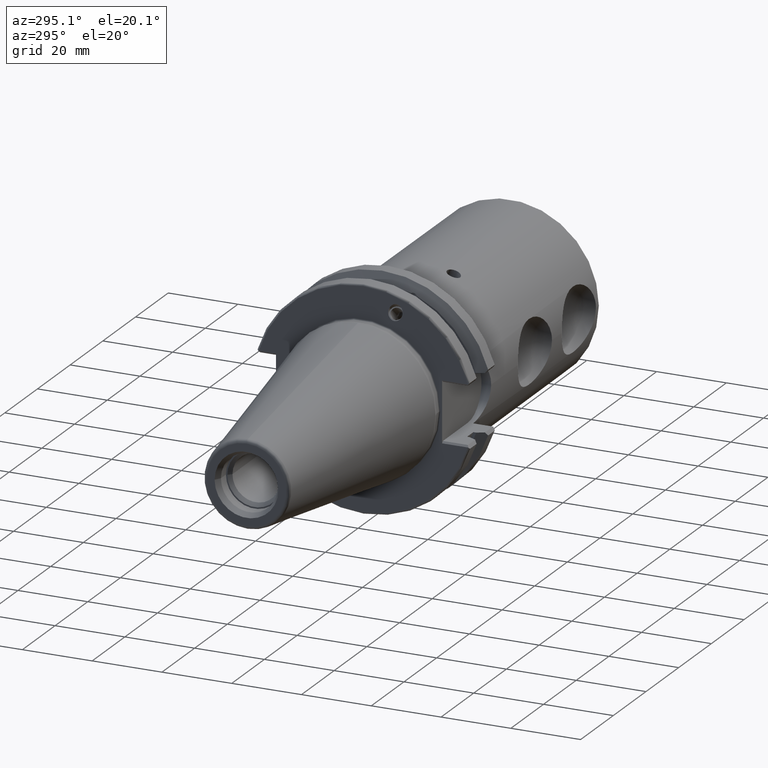
[diagram: clean part render]
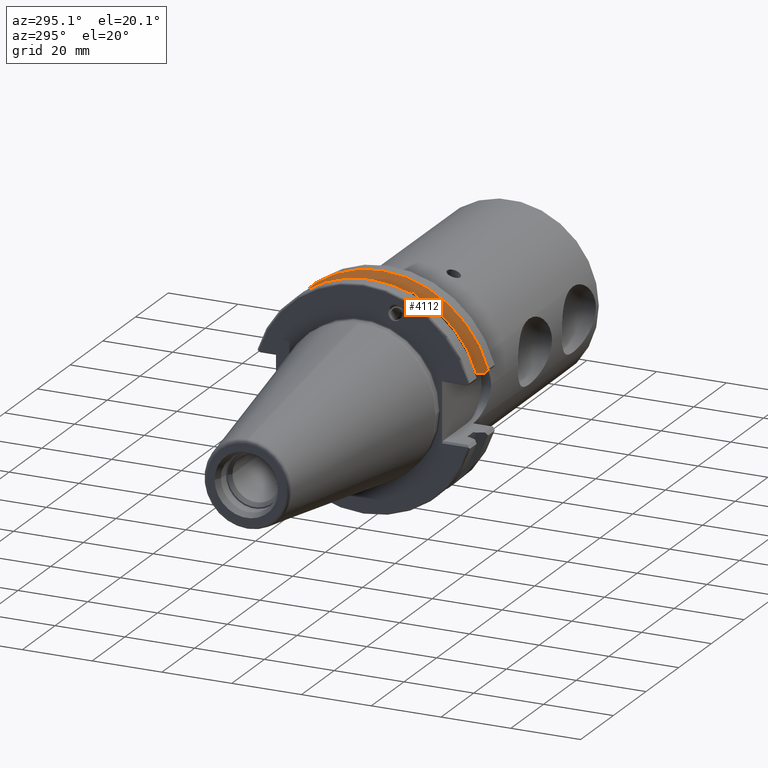
[diagram: same view with one face highlighted and labeled with its STEP entity id]
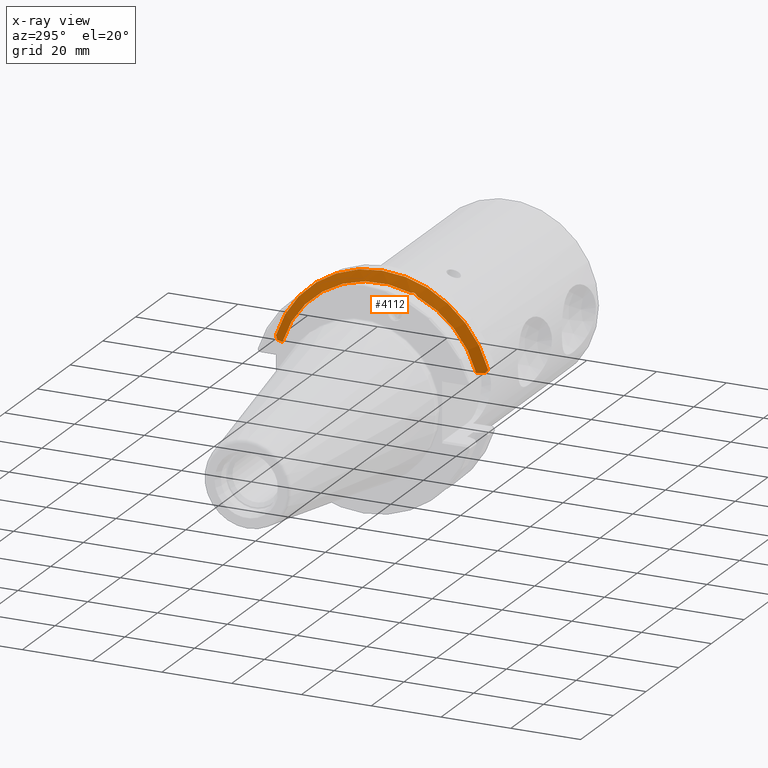
[diagram: x-ray of the same camera — body ghosted, the highlighted face saturated]
A machine part, auxiliary view. The second image highlights one B-rep face of the part: STEP entity #4112.
The next image is the same camera in x-ray: the body ghosted, the highlighted face saturated — about 0% of this face is hidden behind the body in this view.
In plain terms, the highlighted conical surface has half-angle 60 deg.
Its self-contained STEP definition (entity closure, byte-faithful):
#1535=CARTESIAN_POINT('',(1.30464E1,-9.084793785368E0,2.749759693203E1));
#1536=CARTESIAN_POINT('',(1.308149826966E1,-9.179065544022E0,2.753047488320E1));
#1537=CARTESIAN_POINT('',(1.314162715553E1,-9.364207123534E0,2.757829755791E1));
#1538=CARTESIAN_POINT('',(1.320167832453E1,-9.625750633389E0,2.759828699729E1));
#1539=CARTESIAN_POINT('',(1.323327921177E1,-9.873137095184E0,2.756889805318E1));
#1540=CARTESIAN_POINT('',(1.323651888319E1,-1.009660918253E1,2.749378037514E1));
#1541=CARTESIAN_POINT('',(1.321576158414E1,-1.028937524975E1,2.738377555270E1));
#1542=CARTESIAN_POINT('',(1.317511990892E1,-1.045713078144E1,2.724474050070E1));
#1543=CARTESIAN_POINT('',(1.311716536738E1,-1.060145930589E1,2.708109596618E1));
#1544=CARTESIAN_POINT('',(1.307107762697E1,-1.067984243025E1,2.696428810224E1));
#1545=CARTESIAN_POINT('',(1.30464E1,-1.071575880790E1,2.690397421070E1));
#1547=CARTESIAN_POINT('',(1.30464E1,0.E0,0.E0));
#1548=DIRECTION('',(-1.E0,0.E0,0.E0));
#1549=DIRECTION('',(0.E0,-3.137071069069E-1,9.495198002549E-1));
#1550=AXIS2_PLACEMENT_3D('',#1547,#1548,#1549);
#1552=CARTESIAN_POINT('',(1.414186097953E1,2.975013277281E1,8.19E0));
#1553=CARTESIAN_POINT('',(1.401756242049E1,2.952683227014E1,8.19E0));
#1554=CARTESIAN_POINT('',(1.377068175947E1,2.908296065829E1,8.19E0));
#1555=CARTESIAN_POINT('',(1.340552806305E1,2.842534536140E1,8.19E0));
#1556=CARTESIAN_POINT('',(1.316553367620E1,2.799237066391E1,8.19E0));
#1557=CARTESIAN_POINT('',(1.30464E1,2.777724275660E1,8.19E0));
#1559=CARTESIAN_POINT('',(1.465750913500E1,3.042082819764E1,9.090418679549E0));
#1560=CARTESIAN_POINT('',(1.457020733935E1,3.030819545703E1,8.939207533895E0));
#1561=CARTESIAN_POINT('',(1.439695642451E1,3.008378230097E1,8.637929501904E0));
#1562=CARTESIAN_POINT('',(1.422643406289E1,2.986106732427E1,8.338931301213E0));
#1563=CARTESIAN_POINT('',(1.414186097953E1,2.975013277281E1,8.19E0));
#1565=CARTESIAN_POINT('',(1.465750913500E1,0.E0,0.E0));
#1566=DIRECTION('',(1.E0,0.E0,0.E0));
#1567=DIRECTION('',(0.E0,9.581363211856E-1,2.863123993559E-1));
#1568=AXIS2_PLACEMENT_3D('',#1565,#1566,#1567);
#1570=CARTESIAN_POINT('',(1.414186097953E1,-2.975013277281E1,8.19E0));
#1571=CARTESIAN_POINT('',(1.422588999059E1,-2.986035366440E1,8.337973202119E0));
#1572=CARTESIAN_POINT('',(1.439586057419E1,-3.008235706926E1,8.636016106927E0));
#1573=CARTESIAN_POINT('',(1.456965577366E1,-3.030748385248E1,8.938252194093E0));
#1574=CARTESIAN_POINT('',(1.465750913500E1,-3.042082819764E1,9.090418679549E0));
#1576=CARTESIAN_POINT('',(1.30464E1,-2.777724275660E1,8.19E0));
#1577=CARTESIAN_POINT('',(1.316549556382E1,-2.799230184175E1,8.19E0));
#1578=CARTESIAN_POINT('',(1.340543902025E1,-2.842518482368E1,8.19E0));
#1579=CARTESIAN_POINT('',(1.377059199373E1,-2.908279917371E1,8.19E0));
#1580=CARTESIAN_POINT('',(1.401752390619E1,-2.952676307978E1,8.19E0));
#1581=CARTESIAN_POINT('',(1.414186097953E1,-2.975013277281E1,8.19E0));
#1583=CARTESIAN_POINT('',(1.30464E1,0.E0,0.E0));
#1584=DIRECTION('',(-1.E0,0.E0,0.E0));
#1585=DIRECTION('',(0.E0,-9.591762530767E-1,2.828089735736E-1));
#1586=AXIS2_PLACEMENT_3D('',#1583,#1584,#1585);
#2342=CARTESIAN_POINT('',(1.30464E1,2.777724275660E1,8.19E0));
#2343=VERTEX_POINT('',#2342);
#2358=CARTESIAN_POINT('',(1.30464E1,-2.777724275660E1,8.19E0));
#2359=VERTEX_POINT('',#2358);
#2364=VERTEX_POINT('',#1559);
#2365=VERTEX_POINT('',#1563);
#2374=VERTEX_POINT('',#1570);
#2375=VERTEX_POINT('',#1574);
#2578=CARTESIAN_POINT('',(1.30464E1,-1.071575880790E1,2.690397421070E1));
#2579=VERTEX_POINT('',#2578);
#2580=CARTESIAN_POINT('',(1.30464E1,-9.084793785368E0,2.749759693203E1));
#2581=VERTEX_POINT('',#2580);
#4093=CARTESIAN_POINT('',(1.385195456750E1,0.E0,0.E0));
#4094=DIRECTION('',(1.E0,0.E0,0.E0));
#4095=DIRECTION('',(0.E0,0.E0,1.E0));
#4096=AXIS2_PLACEMENT_3D('',#4093,#4094,#4095);
#4097=CONICAL_SURFACE('',#4096,3.035473856082E1,6.E1);
#4099=ORIENTED_EDGE('',*,*,#4098,.F.);
#4100=ORIENTED_EDGE('',*,*,#4070,.T.);
#4102=ORIENTED_EDGE('',*,*,#4101,.F.);
#4104=ORIENTED_EDGE('',*,*,#4103,.F.);
#4105=ORIENTED_EDGE('',*,*,#3336,.T.);
#4107=ORIENTED_EDGE('',*,*,#4106,.F.);
#4108=ORIENTED_EDGE('',*,*,#3411,.F.);
#4109=ORIENTED_EDGE('',*,*,#4053,.T.);
#4110=EDGE_LOOP('',(#4099,#4100,#4102,#4104,#4105,#4107,#4108,#4109));
#4111=FACE_OUTER_BOUND('',#4110,.F.);
#4112=ADVANCED_FACE('',(#4111),#4097,.T.);
#1546=B_SPLINE_CURVE_WITH_KNOTS('',3,(#1535,#1536,#1537,#1538,#1539,#1540,#1541,
#1542,#1543,#1544,#1545),.UNSPECIFIED.,.F.,.F.,(4,1,1,1,1,1,1,1,4),(0.E0,
1.25E-1,2.5E-1,3.75E-1,5.E-1,6.25E-1,7.5E-1,8.75E-1,1.E0),.UNSPECIFIED.);
#1551=CIRCLE('',#1550,2.895947712164E1);
#1558=B_SPLINE_CURVE_WITH_KNOTS('',3,(#1552,#1553,#1554,#1555,#1556,#1557),
.UNSPECIFIED.,.F.,.F.,(4,1,1,4),(0.E0,3.333333333333E-1,6.666666666667E-1,1.E0),
.UNSPECIFIED.);
#1564=B_SPLINE_CURVE_WITH_KNOTS('',3,(#1559,#1560,#1561,#1562,#1563),
.UNSPECIFIED.,.F.,.F.,(4,1,4),(0.E0,5.E-1,1.E0),.UNSPECIFIED.);
#1569=CIRCLE('',#1568,3.175E1);
#1575=B_SPLINE_CURVE_WITH_KNOTS('',3,(#1570,#1571,#1572,#1573,#1574),
.UNSPECIFIED.,.F.,.F.,(4,1,4),(0.E0,5.E-1,1.E0),.UNSPECIFIED.);
#1582=B_SPLINE_CURVE_WITH_KNOTS('',3,(#1576,#1577,#1578,#1579,#1580,#1581),
.UNSPECIFIED.,.F.,.F.,(4,1,1,4),(0.E0,3.333333333333E-1,6.666666666667E-1,1.E0),
.UNSPECIFIED.);
#1587=CIRCLE('',#1586,2.895947712164E1);
#3336=EDGE_CURVE('',#2364,#2375,#1569,.T.);
#3411=EDGE_CURVE('',#2359,#2374,#1582,.T.);
#4053=EDGE_CURVE('',#2359,#2579,#1587,.T.);
#4070=EDGE_CURVE('',#2581,#2343,#1551,.T.);
#4098=EDGE_CURVE('',#2581,#2579,#1546,.T.);
#4101=EDGE_CURVE('',#2365,#2343,#1558,.T.);
#4103=EDGE_CURVE('',#2364,#2365,#1564,.T.);
#4106=EDGE_CURVE('',#2374,#2375,#1575,.T.);